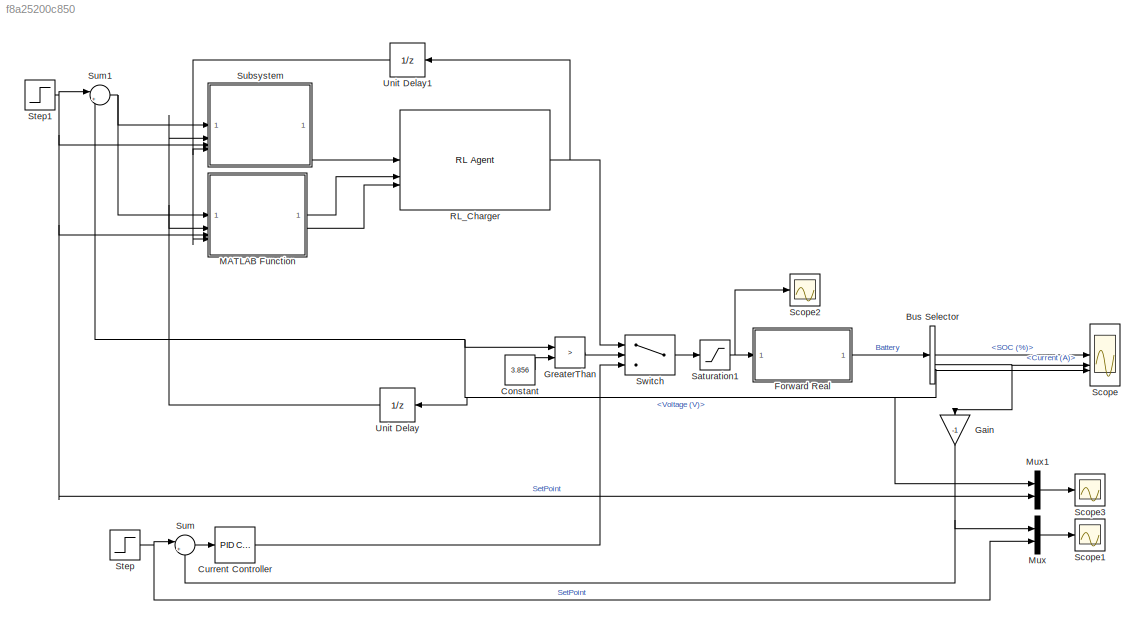
MODEL slx_f8a25200c850
KIND model
CONFIG AbsTol = auto
CONFIG EnableMultiTasking = on
CONFIG FixedStep = auto
CONFIG MaxStep = 1e-4
CONFIG MinStep = auto
CONFIG RelTol = 1e-4
CONFIG SampleTimeConstraint = Unconstrained
CONFIG SolverName = ode23tb
CONFIG StartTime = 0.0
CONFIG StopTime = 6
BLOCK [BusSelector] Bus Selector
  OutputSignals = SOC (%),Current (A),Voltage (V)
BLOCK [Constant] Constant
  Value = 3.856
  VectorParams1D = off
BLOCK [Reference] Current Controller  REF=slpidlib/PID Controller
  LibrarySourceBlock = simulink/Continuous/PID Controller
  SourceBlock = slpidlib/PID Controller
  SourceType = PID 1dof
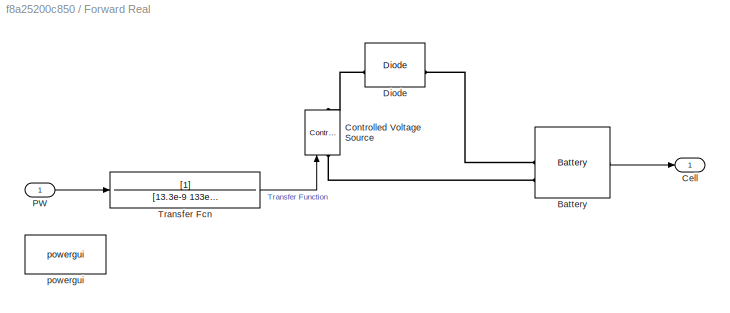
BLOCK [SubSystem] Forward Real
BLOCK [Reference] Forward Real/Battery  REF=spsBatteryLib/Battery
  LibrarySourceBlock = sps_lib/Sources/Battery
  SourceBlock = spsBatteryLib/Battery
  SourceType = Battery
BLOCK [Outport] Forward Real/Cell
BLOCK [Reference] Forward Real/Controlled Voltage Source  REF=spsControlledVoltageSourceLib/Controlled Voltage Source
  LibrarySourceBlock = sps_lib/Sources/Controlled Voltage Source
  SourceBlock = spsControlledVoltageSourceLib/Controlled Voltage Source
  SourceType = Controlled Voltage Source
BLOCK [Reference] Forward Real/Diode  REF=spsDiodeLib/Diode
  LibrarySourceBlock = sps_lib/Power Electronics/Diode
  SourceBlock = spsDiodeLib/Diode
  SourceType = Diode
BLOCK [Inport] Forward Real/PW
BLOCK [TransferFcn] Forward Real/Transfer Fcn
  Denominator = [13.3e-9 133e-6 1]
BLOCK [Reference] Forward Real/powergui  REF=spspowerguiLib/powergui
  LibrarySourceBlock = sps_lib/powergui
  Priority = 1
  SourceBlock = spspowerguiLib/powergui
  SourceType = PSB option menu block
BLOCK [Gain] Gain
  Gain = -1
  NameLocation = right
BLOCK [RelationalOperator] GreaterThan
  InputSameDT = off
  Operator = >
  OutDataTypeStr = boolean
  RndMeth = Simplest
  ZeroCross = off
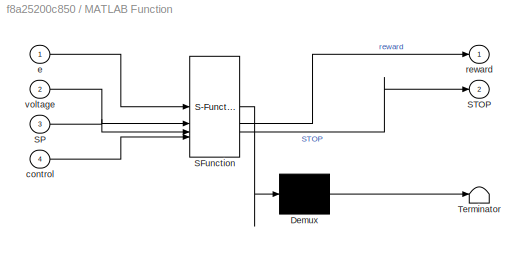
BLOCK [SubSystem] MATLAB Function
  ErrorFcn = Stateflow.Translate.translate
  PermitHierarchicalResolution = ExplicitOnly
  SFBlockType = MATLAB Function
  TreatAsAtomicUnit = on
BLOCK [Demux] MATLAB Function/ Demux 
  Outputs = 1
BLOCK [S-Function] MATLAB Function/ SFunction 
  EnableBusSupport = on
  FunctionName = sf_sfun
  PortCounts = [4 3]
  SFcnIsStateOwnerBlock = off
  SFunctionDeploymentMode = off
  Tag = Stateflow S-Function 2
BLOCK [Terminator] MATLAB Function/ Terminator 
BLOCK [Inport] MATLAB Function/SP
  Port = 3
BLOCK [Outport] MATLAB Function/STOP
  Port = 2
BLOCK [Inport] MATLAB Function/control
  Port = 4
BLOCK [Inport] MATLAB Function/e
BLOCK [Outport] MATLAB Function/reward
BLOCK [Inport] MATLAB Function/voltage
  Port = 2
BLOCK [Mux] Mux
  DisplayOption = bar
  Inputs = 2
BLOCK [Mux] Mux1
  DisplayOption = bar
  Inputs = 2
BLOCK [Reference] RL_Charger  REF=rllib/RL Agent
  SourceBlock = rllib/RL Agent
  SourceType = RL Agent
BLOCK [Saturate] Saturation1
  LowerLimit = 0
  UpperLimit = 24
BLOCK [Scope] Scope
  Floating = off
  NumInputPorts = 3
  ScopeSpecificationString = Simulink.scopes.TimeScopeBlockCfg('CurrentConfiguration', extmgr.ConfigurationSet(extmgr.Configuration('Core','General UI',true,'FigureColor',[1 1 1]),extmgr.Configuration('Core','Source UI',true),extmgr.Configuration('Sources','WiredSimulink',true),extmgr.Configuration('Visuals','Time Domain',true,'SerializedDisplays',{struct('MinYLimReal','99.79528','MaxYLimReal','99.84247','YLabelReal','','MinY...<+3127ch>
BLOCK [Scope] Scope1
  Floating = off
  NumInputPorts = 1
  ScopeSpecificationString = Simulink.scopes.TimeScopeBlockCfg('CurrentConfiguration', extmgr.ConfigurationSet(extmgr.Configuration('Core','General UI',true),extmgr.Configuration('Core','Source UI',true),extmgr.Configuration('Sources','WiredSimulink',true,'DataLoggingVariableName','ScopeData1'),extmgr.Configuration('Visuals','Time Domain',true,'SerializedDisplays',{struct('MinYLimReal','-0.93958','MaxYLimReal','8.45625','YLab...<+1478ch>
BLOCK [Scope] Scope2
  Floating = off
  NumInputPorts = 1
  ScopeSpecificationString = Simulink.scopes.TimeScopeBlockCfg('CurrentConfiguration', extmgr.ConfigurationSet(extmgr.Configuration('Core','General UI',true),extmgr.Configuration('Core','Source UI',true),extmgr.Configuration('Sources','WiredSimulink',true,'DataLoggingVariableName','ScopeData2'),extmgr.Configuration('Visuals','Time Domain',true,'SerializedDisplays',{struct('MinYLimReal','-0.56319','MaxYLimReal','5.06875','YLab...<+1416ch>
BLOCK [Scope] Scope3
  Floating = off
  NumInputPorts = 1
  ScopeSpecificationString = Simulink.scopes.TimeScopeBlockCfg('CurrentConfiguration', extmgr.ConfigurationSet(extmgr.Configuration('Core','General UI',true),extmgr.Configuration('Core','Source UI',true),extmgr.Configuration('Sources','WiredSimulink',true,'DataLoggingVariableName','ScopeData1'),extmgr.Configuration('Visuals','Time Domain',true,'SerializedDisplays',{struct('MinYLimReal','3.79259','MaxYLimReal','4.10266','YLabe...<+1460ch>
BLOCK [Step] Step
  After = 0.3
  SampleTime = 0
  Time = 0
BLOCK [Step] Step1
  After = 3.856
  SampleTime = Ts
  Time = 0
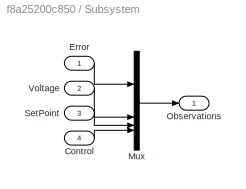
BLOCK [SubSystem] Subsystem
BLOCK [Inport] Subsystem/Control
  NameLocation = left
  Port = 4
BLOCK [Inport] Subsystem/Error
  NameLocation = left
BLOCK [Mux] Subsystem/Mux
  DisplayOption = bar
BLOCK [Outport] Subsystem/Observations
  NameLocation = right
BLOCK [Inport] Subsystem/SetPoint
  NameLocation = left
  Port = 3
BLOCK [Inport] Subsystem/Voltage
  NameLocation = left
  Port = 2
BLOCK [Sum] Sum
  Inputs = |+-
BLOCK [Sum] Sum1
  Inputs = |+-
BLOCK [Switch] Switch
  Criteria = u2 > Threshold
  InputSameDT = off
  SaturateOnIntegerOverflow = off
BLOCK [UnitDelay] Unit Delay
  HasFrameUpgradeWarning = on
  NameLocation = top
  SampleTime = Ts
BLOCK [UnitDelay] Unit Delay1
  HasFrameUpgradeWarning = on
  SampleTime = Ts
LINE Bus Selector:1 -> Scope:1
NET Bus Selector:2 -> Gain:1, Scope:2
NET Bus Selector:3 -> GreaterThan:1, Mux1:1, Scope:3, Sum1:2, Unit Delay:1
LINE Constant:1 -> GreaterThan:2
LINE Current Controller:1 -> Switch:3
LINE Forward Real/Battery:1 -> Forward Real/Cell:1
LINE Forward Real/PW:1 -> Forward Real/Transfer Fcn:1
LINE Forward Real/Transfer Fcn:1 -> Forward Real/Controlled Voltage Source:1
LINE Forward Real:1 -> Bus Selector:1
NET Gain:1 -> Mux:1, Sum:2
LINE GreaterThan:1 -> Switch:2
LINE MATLAB Function:1 -> RL_Charger:2
LINE MATLAB Function:2 -> RL_Charger:3
LINE Mux1:1 -> Scope3:1
LINE Mux:1 -> Scope1:1
NET RL_Charger:1 -> Switch:1, Unit Delay1:1
NET Saturation1:1 -> Forward Real:1, Scope2:1
NET Step1:1 -> MATLAB Function:3, Mux1:2, Subsystem:3, Sum1:1
NET Step:1 -> Mux:2, Sum:1
LINE Subsystem/Control:1 -> Subsystem/Mux:4
LINE Subsystem/Error:1 -> Subsystem/Mux:1
LINE Subsystem/Mux:1 -> Subsystem/Observations:1
LINE Subsystem/SetPoint:1 -> Subsystem/Mux:3
LINE Subsystem/Voltage:1 -> Subsystem/Mux:2
LINE Subsystem:1 -> RL_Charger:1
NET Sum1:1 -> MATLAB Function:1, Subsystem:1
LINE Sum:1 -> Current Controller:1
LINE Switch:1 -> Saturation1:1
NET Unit Delay1:1 -> MATLAB Function:4, Subsystem:4
NET Unit Delay:1 -> MATLAB Function:2, Subsystem:2
PLINE Forward Real/Battery:LConn1 -- Forward Real/Diode:RConn1
PLINE Forward Real/Battery:LConn2 -- Forward Real/Controlled Voltage Source:LConn1
PLINE Forward Real/Controlled Voltage Source:RConn1 -- Forward Real/Diode:LConn1
note: NET lines group one-source signal fan-out (src -> all destinations, sorted); 1:1 wires keep LINE
CHART MATLAB Function states=1 transitions=1
  STATE_LABEL 'eML_blk_kernel()'
  STATE_LABEL 'SCRIPT:\n% Función de recompensa\nfunction [reward, STOP] = fcn(e, voltage, SP, control)\n    % Función de recompensa ajustada\n    ce1 = 200 * (abs(e) <= 0.5); % Recompensa alta para errores pequeños\n    ce2 = -25 * (abs(e) > 0.5); % Penalización moderada para errores grandes\n    cv = -10 * (voltage > 4); % Penalización moderada para corriente alta\n    cc = 180 * (control == SP);\n    % Calcular la re...<+143ch>'
CHART  states=0 transitions=0
